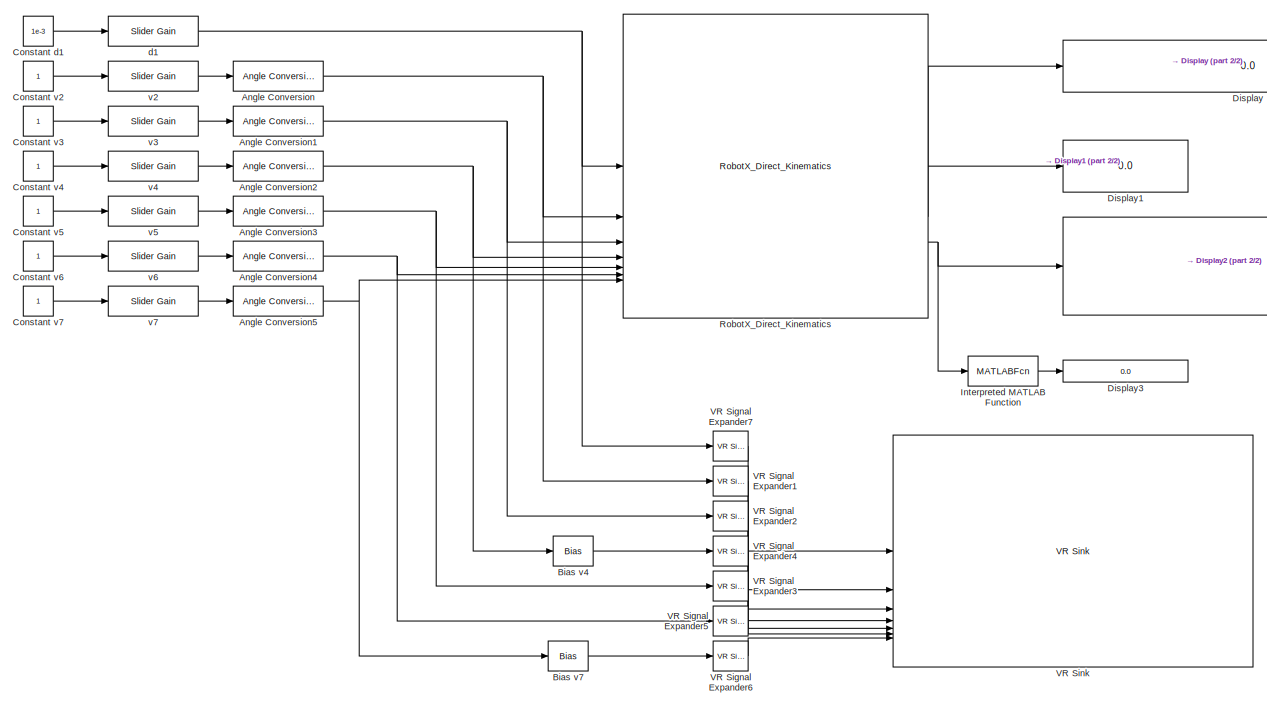
[diagram: root canvas - part 1/2, left side, full height]
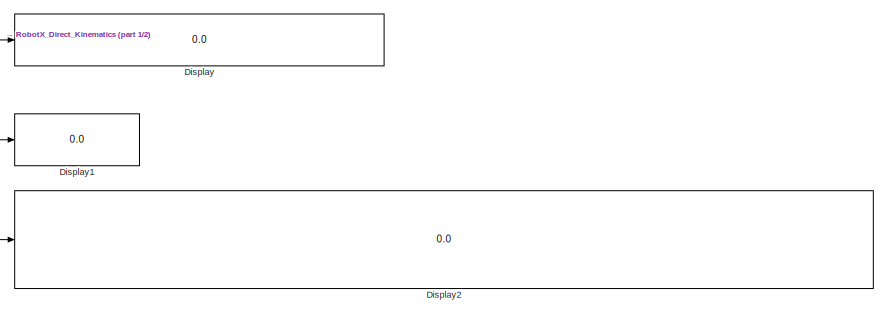
[diagram: root canvas - part 2/2, top right region]
MODEL slx_77736868ee64
KIND model
CONFIG AbsTol = auto
CONFIG EnableMultiTasking = on
CONFIG FixedStep = auto
CONFIG MaxStep = auto
CONFIG MinStep = auto
CONFIG RelTol = 1e-3
CONFIG SampleTimeConstraint = Unconstrained
CONFIG SolverName = VariableStepAuto
CONFIG StartTime = 0.0
CONFIG StopTime = inf
BLOCK [Reference] Angle Conversion  REF=aerolibconvert2/Angle Conversion
  SourceBlock = aerolibconvert2/Angle Conversion
  SourceType = Angle Conversion
BLOCK [Reference] Angle Conversion1  REF=aerolibconvert2/Angle Conversion
  SourceBlock = aerolibconvert2/Angle Conversion
  SourceType = Angle Conversion
BLOCK [Reference] Angle Conversion2  REF=aerolibconvert2/Angle Conversion
  SourceBlock = aerolibconvert2/Angle Conversion
  SourceType = Angle Conversion
BLOCK [Reference] Angle Conversion3  REF=aerolibconvert2/Angle Conversion
  SourceBlock = aerolibconvert2/Angle Conversion
  SourceType = Angle Conversion
BLOCK [Reference] Angle Conversion4  REF=aerolibconvert2/Angle Conversion
  SourceBlock = aerolibconvert2/Angle Conversion
  SourceType = Angle Conversion
BLOCK [Reference] Angle Conversion5  REF=aerolibconvert2/Angle Conversion
  SourceBlock = aerolibconvert2/Angle Conversion
  SourceType = Angle Conversion
BLOCK [Bias] Bias v4
  Bias = -pi/2
  SaturateOnIntegerOverflow = off
BLOCK [Bias] Bias v7
  Bias = pi
  SaturateOnIntegerOverflow = off
BLOCK [Constant] Constant d1
  Value = 1e-3
BLOCK [Constant] Constant v2
BLOCK [Constant] Constant v3
BLOCK [Constant] Constant v4
BLOCK [Constant] Constant v5
BLOCK [Constant] Constant v6
BLOCK [Constant] Constant v7
BLOCK [Display] Display
  Decimation = 2
  Format = decimal (Stored Integer)
BLOCK [Display] Display1
  Decimation = 1
  Format = decimal (Stored Integer)
BLOCK [Display] Display2
  Decimation = 1
  Format = decimal (Stored Integer)
BLOCK [Display] Display3
  Decimation = 1
  Format = decimal (Stored Integer)
BLOCK [MATLABFcn] Interpreted MATLAB Function
  MATLABFcn = rank
BLOCK [Reference] RobotX_Direct_Kinematics  REF=RobotX_Lib/RobotX_Direct_Kinematics
  SourceBlock = RobotX_Lib/RobotX_Direct_Kinematics
  SourceType = SubSystem
BLOCK [Reference] VR Signal Expander1  REF=vrlib/VR Signal Expander
  SourceBlock = vrlib/VR Signal Expander
  SourceType = VR Signal Expander
BLOCK [Reference] VR Signal Expander2  REF=vrlib/VR Signal Expander
  SourceBlock = vrlib/VR Signal Expander
  SourceType = VR Signal Expander
BLOCK [Reference] VR Signal Expander3  REF=vrlib/VR Signal Expander
  SourceBlock = vrlib/VR Signal Expander
  SourceType = VR Signal Expander
BLOCK [Reference] VR Signal Expander4  REF=vrlib/VR Signal Expander
  SourceBlock = vrlib/VR Signal Expander
  SourceType = VR Signal Expander
BLOCK [Reference] VR Signal Expander5  REF=vrlib/VR Signal Expander
  SourceBlock = vrlib/VR Signal Expander
  SourceType = VR Signal Expander
BLOCK [Reference] VR Signal Expander6  REF=vrlib/VR Signal Expander
  SourceBlock = vrlib/VR Signal Expander
  SourceType = VR Signal Expander
BLOCK [Reference] VR Signal Expander7  REF=vrlib/VR Signal Expander
  SourceBlock = vrlib/VR Signal Expander
  SourceType = VR Signal Expander
BLOCK [Reference] VR Sink  REF=vrlib/VR Sink
  InstantiateOnLoad = on
  SourceBlock = vrlib/VR Sink
  SourceType = Virtual Reality Sink
BLOCK [Reference] d1  REF=simulink/Math
Operations/Slider
Gain
  SourceBlock = simulink/Math\nOperations/Slider\nGain
  SourceType = Slider Gain
BLOCK [Reference] v2  REF=simulink/Math
Operations/Slider
Gain
  SourceBlock = simulink/Math\nOperations/Slider\nGain
  SourceType = Slider Gain
BLOCK [Reference] v3  REF=simulink/Math
Operations/Slider
Gain
  SourceBlock = simulink/Math\nOperations/Slider\nGain
  SourceType = Slider Gain
BLOCK [Reference] v4  REF=simulink/Math
Operations/Slider
Gain
  SourceBlock = simulink/Math\nOperations/Slider\nGain
  SourceType = Slider Gain
BLOCK [Reference] v5  REF=simulink/Math
Operations/Slider
Gain
  SourceBlock = simulink/Math\nOperations/Slider\nGain
  SourceType = Slider Gain
BLOCK [Reference] v6  REF=simulink/Math
Operations/Slider
Gain
  SourceBlock = simulink/Math\nOperations/Slider\nGain
  SourceType = Slider Gain
BLOCK [Reference] v7  REF=simulink/Math
Operations/Slider
Gain
  SourceBlock = simulink/Math\nOperations/Slider\nGain
  SourceType = Slider Gain
NET Angle Conversion1:1 -> RobotX_Direct_Kinematics:3, VR Signal Expander2:1
NET Angle Conversion2:1 -> Bias v4:1, RobotX_Direct_Kinematics:4
NET Angle Conversion3:1 -> RobotX_Direct_Kinematics:5, VR Signal Expander3:1
NET Angle Conversion4:1 -> RobotX_Direct_Kinematics:6, VR Signal Expander5:1
NET Angle Conversion5:1 -> Bias v7:1, RobotX_Direct_Kinematics:7
NET Angle Conversion:1 -> RobotX_Direct_Kinematics:2, VR Signal Expander1:1
LINE Bias v4:1 -> VR Signal Expander4:1
LINE Bias v7:1 -> VR Signal Expander6:1
LINE Constant d1:1 -> d1:1
LINE Constant v2:1 -> v2:1
LINE Constant v3:1 -> v3:1
LINE Constant v4:1 -> v4:1
LINE Constant v5:1 -> v5:1
LINE Constant v6:1 -> v6:1
LINE Constant v7:1 -> v7:1
LINE Interpreted MATLAB Function:1 -> Display3:1
LINE RobotX_Direct_Kinematics:1 -> Display:1
LINE RobotX_Direct_Kinematics:2 -> Display1:1
NET RobotX_Direct_Kinematics:3 -> Display2:1, Interpreted MATLAB Function:1
LINE VR Signal Expander1:1 -> VR Sink:2
LINE VR Signal Expander2:1 -> VR Sink:3
LINE VR Signal Expander3:1 -> VR Sink:5
LINE VR Signal Expander4:1 -> VR Sink:4
LINE VR Signal Expander5:1 -> VR Sink:6
LINE VR Signal Expander6:1 -> VR Sink:7
LINE VR Signal Expander7:1 -> VR Sink:1
NET d1:1 -> RobotX_Direct_Kinematics:1, VR Signal Expander7:1
LINE v2:1 -> Angle Conversion:1
LINE v3:1 -> Angle Conversion1:1
LINE v4:1 -> Angle Conversion2:1
LINE v5:1 -> Angle Conversion3:1
LINE v6:1 -> Angle Conversion4:1
LINE v7:1 -> Angle Conversion5:1
note: NET lines group one-source signal fan-out (src -> all destinations, sorted); 1:1 wires keep LINE
